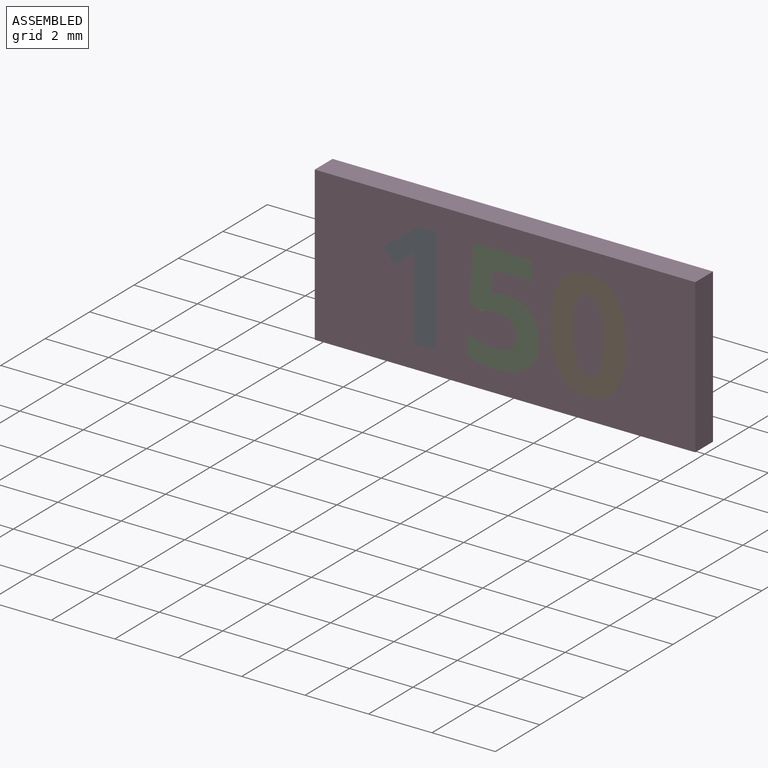
[diagram: assembled view]
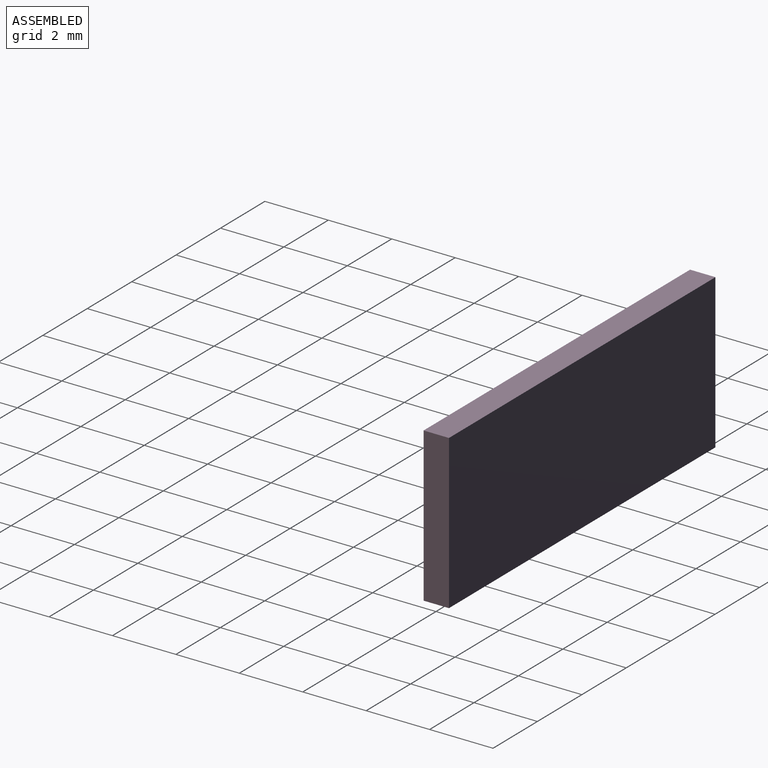
[diagram: assembled view, second angle]
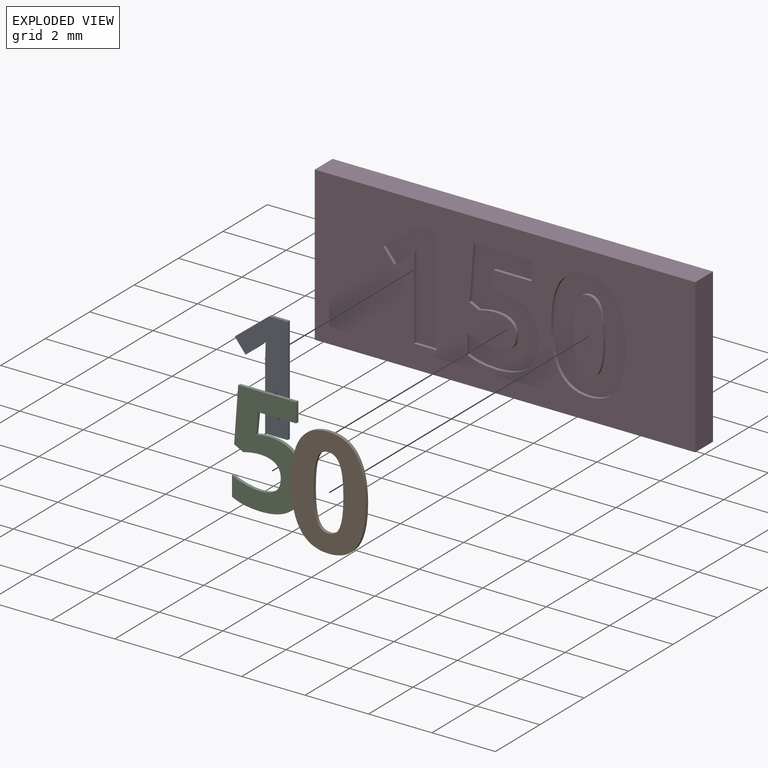
[diagram: exploded view]
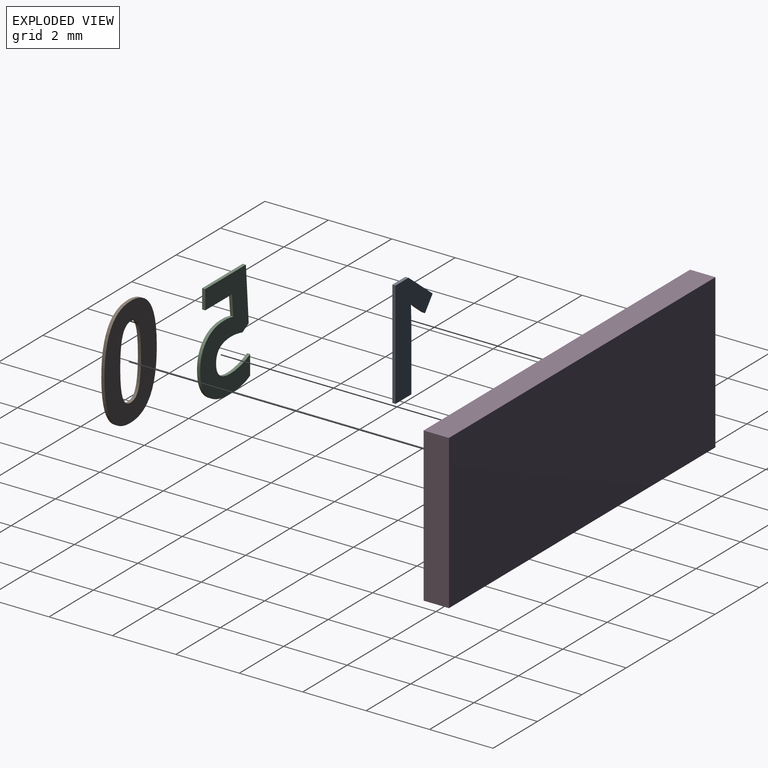
[diagram: exploded view, second angle]
ASSEMBLY  parts=4 mates=3
PART A: 12 faces, bbox 1.7x0.1x3.4 mm
  f0: plane 3.37x1.67mm, normal (0,-1,0), area 2.9mm2, adj f1,f2,f3,f4,f5,f6,f7,f9
  f1: plane 0.59x0.1mm, normal (0,0,1), area 0.1mm2, adj f0,f2,f8,f10
  f2: plane 1.09x0.86mm, normal (-0.62,0,0.78), area 0.1mm2, adj f0,f1,f3,f8
  f3: plane 0.43x0.34mm, normal (-0.78,0,-0.63), area 0.1mm2, adj f0,f2,f4,f8
  f4: plane 0.39x0.31mm, normal (0.63,0,-0.78), area 0mm2, adj f0,f3,f5,f8
  f5: extruded ~0.25x0.23mm, area 0mm2, adj f0,f4,f6,f8
  f6: plane 0.35x0.1mm, normal (-1,0,0.03), area 0mm2, adj f0,f5,f7,f8
  f7: plane 0.32x0.1mm, normal (-1,0,0.02), area 0mm2, adj f0,f6,f8,f9
  f8: plane 3.37x1.67mm, normal (0,1,0), area 2.9mm2, adj f1,f2,f3,f4,f5,f6,f7,f9
  f9: plane 1.95x0.1mm, normal (-1,0,0), area 0.2mm2, adj f0,f7,f8,f11
  f10: plane 3.37x0.1mm, normal (1,0,0), area 0.3mm2, adj f0,f1,f8,f11
  f11: plane 0.71x0.1mm, normal (0,0,-1), area 0.1mm2, adj f0,f8,f9,f10
PART B: 18 faces, bbox 2.4x0.1x3.5 mm
  f0: plane 3.47x2.36mm, normal (0,-1,0), area 5mm2, adj f1,f2,f3,f4,f5,f6,f7,f8
  f1: extruded ~0.88x0.44mm, area 0.1mm2, adj f0,f2,f11,f13
  f2: extruded ~0.89x0.42mm, area 0.1mm2, adj f0,f1,f3,f11
  f3: extruded ~1.32x0.29mm, area 0.1mm2, adj f0,f2,f4,f11
  f4: extruded ~1.29x0.3mm, area 0.1mm2, adj f0,f3,f5,f11
  f5: extruded ~0.88x0.44mm, area 0.1mm2, adj f0,f4,f11,f12
  f6: extruded ~0.36x0.27mm, area 0mm2, adj f0,f7,f11,f16
  f7: extruded ~0.36x0.27mm, area 0mm2, adj f0,f6,f8,f11
  f8: extruded ~0.89x0.11mm, area 0.1mm2, adj f0,f7,f9,f11
  f9: extruded ~0.89x0.11mm, area 0.1mm2, adj f0,f8,f10,f11
  f10: extruded ~0.36x0.27mm, area 0mm2, adj f0,f9,f11,f15
  f11: plane 3.47x2.36mm, normal (0,1,0), area 5mm2, adj f1,f2,f3,f4,f5,f6,f7,f8
  f12: extruded ~0.89x0.42mm, area 0.1mm2, adj f0,f5,f11,f14
  f13: extruded ~1.3x0.3mm, area 0.1mm2, adj f0,f1,f11,f14
  f14: extruded ~1.31x0.29mm, area 0.1mm2, adj f0,f11,f12,f13
  f15: extruded ~0.36x0.27mm, area 0mm2, adj f0,f10,f11,f17
  f16: extruded ~0.89x0.11mm, area 0.1mm2, adj f0,f6,f11,f17
  f17: extruded ~0.89x0.11mm, area 0.1mm2, adj f0,f11,f15,f16
PART C: 22 faces, bbox 2.3x0.1x3.4 mm
  f0: plane 3.42x2.25mm, normal (0,-1,0), area 4.5mm2, adj f1,f2,f3,f4,f5,f6,f7,f8
  f1: plane 0.1x0.08mm, normal (-0.2,0,0.98), area 0mm2, adj f0,f2,f18,f20
  f2: plane 0.66x0.1mm, normal (1,0,-0.09), area 0.1mm2, adj f0,f1,f3,f18
  f3: plane 1.2x0.1mm, normal (0,0,-1), area 0.1mm2, adj f0,f2,f4,f18
  f4: plane 0.6x0.1mm, normal (1,0,0), area 0.1mm2, adj f0,f3,f5,f18
  f5: plane 1.83x0.1mm, normal (0,0,1), area 0.2mm2, adj f0,f4,f6,f18
  f6: plane 1.72x0.13mm, normal (-1,0,0.07), area 0.2mm2, adj f0,f5,f7,f18
  f7: plane 0.28x0.15mm, normal (-0.47,0,-0.88), area 0mm2, adj f0,f6,f8,f18
  f8: extruded ~0.24x0.1mm, area 0mm2, adj f0,f7,f9,f18
  f9: extruded ~0.27x0.1mm, area 0mm2, adj f0,f8,f10,f18
  f10: extruded ~0.68x0.51mm, area 0.1mm2, adj f0,f9,f11,f18
  f11: extruded ~0.65x0.54mm, area 0.1mm2, adj f0,f10,f12,f18
  f12: extruded ~0.46x0.1mm, area 0mm2, adj f0,f11,f13,f18
  f13: extruded ~0.42x0.16mm, area 0mm2, adj f0,f12,f14,f18
  f14: plane 0.62x0.1mm, normal (-1,0,0), area 0.1mm2, adj f0,f13,f15,f18
  f15: extruded ~0.91x0.18mm, area 0.1mm2, adj f0,f14,f16,f18
  f16: extruded ~1x0.3mm, area 0.1mm2, adj f0,f15,f17,f18
  f17: extruded ~0.87x0.35mm, area 0.1mm2, adj f0,f16,f18,f19
  f18: plane 3.42x2.25mm, normal (0,1,0), area 4.5mm2, adj f1,f2,f3,f4,f5,f6,f7,f8
  f19: extruded ~0.75x0.29mm, area 0.1mm2, adj f0,f17,f18,f21
  f20: extruded ~0.35x0.1mm, area 0mm2, adj f0,f1,f18,f21
  f21: extruded ~0.78x0.27mm, area 0.1mm2, adj f0,f18,f19,f20
PART D: 56 faces, bbox 12x0.8x4.9 mm
  f0: plane 12x4.85mm, normal (0,-1,0), area 43.9mm2, adj f1,f2,f3,f4,f6,f7,f8,f9
  f1: plane 12x0.8mm, normal (0,0,-1), area 9.6mm2, adj f0,f2,f4,f5
  f2: plane 4.85x0.8mm, normal (1,0,0), area 3.9mm2, adj f0,f1,f3,f5
  f3: plane 12x0.8mm, normal (0,0,1), area 9.6mm2, adj f0,f2,f4,f5
  f4: plane 4.85x0.8mm, normal (-1,0,0), area 3.9mm2, adj f0,f1,f3,f5
  f5: plane 12x4.85mm, normal (0,1,0), area 58.2mm2, adj f1,f2,f3,f4
  f6: extruded ~1.3x0.3mm, area 0.1mm2, adj f0,f7,f21,f22
  f7: extruded ~0.88x0.44mm, area 0.1mm2, adj f0,f6,f8,f22
  f8: extruded ~0.89x0.42mm, area 0.1mm2, adj f0,f7,f9,f22
  f9: extruded ~1.32x0.29mm, area 0.1mm2, adj f0,f8,f10,f22
  f10: extruded ~1.29x0.3mm, area 0.1mm2, adj f0,f9,f11,f22
  f11: extruded ~0.88x0.44mm, area 0.1mm2, adj f0,f10,f12,f22
  f12: extruded ~0.89x0.42mm, area 0.1mm2, adj f0,f11,f21,f22
  f13: extruded ~0.89x0.11mm, area 0.1mm2, adj f14,f20,f22,f23
  f14: extruded ~0.36x0.27mm, area 0mm2, adj f13,f15,f22,f23
  f15: extruded ~0.36x0.27mm, area 0mm2, adj f14,f16,f22,f23
  f16: extruded ~0.89x0.11mm, area 0.1mm2, adj f15,f17,f22,f23
  f17: extruded ~0.89x0.11mm, area 0.1mm2, adj f16,f18,f22,f23
  f18: extruded ~0.36x0.27mm, area 0mm2, adj f17,f19,f22,f23
  f19: extruded ~0.36x0.27mm, area 0mm2, adj f18,f20,f22,f23
  f20: extruded ~0.89x0.11mm, area 0.1mm2, adj f13,f19,f22,f23
  f21: extruded ~1.31x0.29mm, area 0.1mm2, adj f0,f6,f12,f22
  f22: plane 3.47x2.36mm, normal (0,-1,0), area 5mm2, adj f6,f7,f8,f9,f10,f11,f12,f13
  f23: plane 2.32x0.94mm, normal (0,-1,0), area 1.8mm2, adj f13,f14,f15,f16,f17,f18,f19,f20
  f24: extruded ~0.35x0.1mm, area 0mm2, adj f0,f25,f43,f44
  f25: plane 0.1x0.08mm, normal (0.2,0,-0.98), area 0mm2, adj f0,f24,f26,f44
  f26: plane 0.66x0.1mm, normal (-1,0,0.09), area 0.1mm2, adj f0,f25,f27,f44
  f27: plane 1.2x0.1mm, normal (0,0,1), area 0.1mm2, adj f0,f26,f28,f44
  f28: plane 0.6x0.1mm, normal (-1,0,0), area 0.1mm2, adj f0,f27,f29,f44
  f29: plane 1.83x0.1mm, normal (0,0,-1), area 0.2mm2, adj f0,f28,f30,f44
  f30: plane 1.72x0.13mm, normal (1,0,-0.07), area 0.2mm2, adj f0,f29,f31,f44
  f31: plane 0.28x0.15mm, normal (0.47,0,0.88), area 0mm2, adj f0,f30,f32,f44
  f32: extruded ~0.24x0.1mm, area 0mm2, adj f0,f31,f33,f44
  f33: extruded ~0.27x0.1mm, area 0mm2, adj f0,f32,f34,f44
  f34: extruded ~0.68x0.51mm, area 0.1mm2, adj f0,f33,f35,f44
  f35: extruded ~0.65x0.54mm, area 0.1mm2, adj f0,f34,f36,f44
  f36: extruded ~0.46x0.1mm, area 0mm2, adj f0,f35,f37,f44
  f37: extruded ~0.42x0.16mm, area 0mm2, adj f0,f36,f38,f44
  f38: plane 0.62x0.1mm, normal (1,0,0), area 0.1mm2, adj f0,f37,f39,f44
  f39: extruded ~0.91x0.18mm, area 0.1mm2, adj f0,f38,f40,f44
  f40: extruded ~1x0.3mm, area 0.1mm2, adj f0,f39,f41,f44
  f41: extruded ~0.87x0.35mm, area 0.1mm2, adj f0,f40,f42,f44
  f42: extruded ~0.75x0.29mm, area 0.1mm2, adj f0,f41,f43,f44
  f43: extruded ~0.78x0.27mm, area 0.1mm2, adj f0,f24,f42,f44
  f44: plane 3.42x2.25mm, normal (0,-1,0), area 4.5mm2, adj f24,f25,f26,f27,f28,f29,f30,f31
  f45: plane 3.37x0.1mm, normal (-1,0,0), area 0.3mm2, adj f0,f46,f54,f55
  f46: plane 0.59x0.1mm, normal (0,0,-1), area 0.1mm2, adj f0,f45,f47,f55
  f47: plane 1.09x0.86mm, normal (0.62,0,-0.78), area 0.1mm2, adj f0,f46,f48,f55
  f48: plane 0.43x0.34mm, normal (0.78,0,0.63), area 0.1mm2, adj f0,f47,f49,f55
  f49: plane 0.39x0.31mm, normal (-0.63,0,0.78), area 0mm2, adj f0,f48,f50,f55
  f50: extruded ~0.25x0.23mm, area 0mm2, adj f0,f49,f51,f55
  f51: plane 0.35x0.1mm, normal (1,0,-0.03), area 0mm2, adj f0,f50,f52,f55
  f52: plane 0.32x0.1mm, normal (1,0,-0.02), area 0mm2, adj f0,f51,f53,f55
  f53: plane 1.95x0.1mm, normal (1,0,0), area 0.2mm2, adj f0,f52,f54,f55
  f54: plane 0.71x0.1mm, normal (0,0,1), area 0.1mm2, adj f0,f45,f53,f55
  f55: plane 3.37x1.67mm, normal (0,-1,0), area 2.9mm2, adj f45,f46,f47,f48,f49,f50,f51,f52
PLACE A t=(-4.57,0.4,0.01)mm
PLACE B t=(-0.24,0.4,0.01)mm
PLACE C t=(-1.61,0.4,0.01)mm
PLACE D t=(-0.02,0.4,0.01)mm
MATE fastened A.f0 <-> D.f0  axis (0,-1,0) through (-2.89,-0.4,-1.69)mm
MATE fastened C.f0 <-> D.f0  axis (0,-1,0) through (-1.2,-0.4,-1.55)mm
MATE fastened B.f0 <-> D.f23  axis (0,-1,0) through (2.61,-0.4,-1.16)mm
